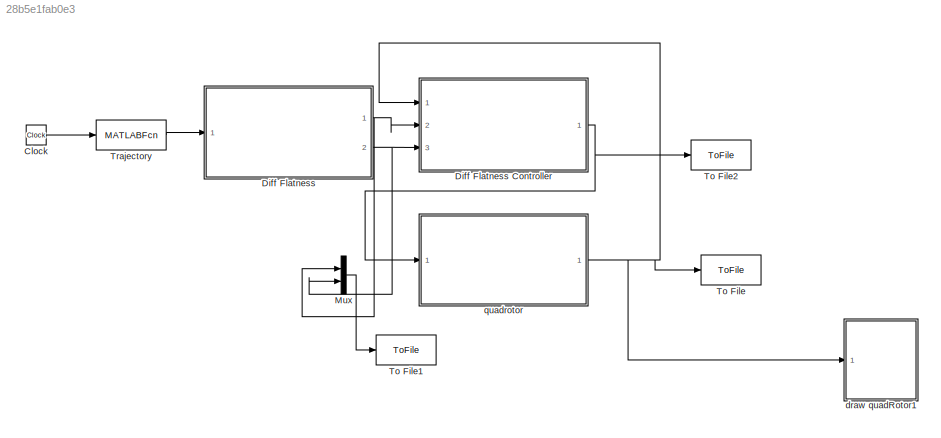
MODEL slx_28b5e1fab0e3
KIND model
BLOCK [Clock] Clock
  Decimation = 100
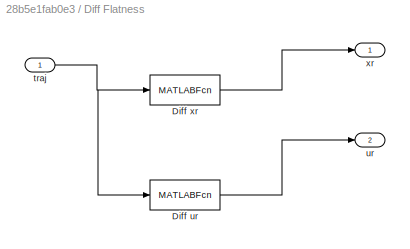
BLOCK [SubSystem] Diff Flatness
  FunctionWithSeparateData = off
  MaskHideContents = off
  MinAlgLoopOccurrences = off
  Opaque = off
  Ports = [1, 2]
  PropExecContextOutsideSubsystem = off
  RTWSystemCode = Auto
  RequestExecContextInheritance = off
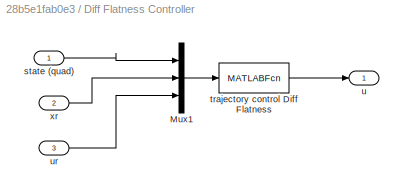
BLOCK [SubSystem] Diff Flatness Controller
  FunctionWithSeparateData = off
  MaskHideContents = off
  MinAlgLoopOccurrences = off
  Opaque = off
  Ports = [3, 1]
  PropExecContextOutsideSubsystem = off
  RTWSystemCode = Auto
  RequestExecContextInheritance = off
BLOCK [Mux] Diff Flatness Controller/Mux1
  DisplayOption = bar
  Inputs = 3
  Ports = [3, 1]
BLOCK [Inport] Diff Flatness Controller/state (quad)
  IconDisplay = Port number
BLOCK [MATLABFcn] Diff Flatness Controller/trajectory control Diff Flatness
  MATLABFcn = TrajControlI_diffFlatness(u,P)
  OutputDimensions = 4
  Ports = [1, 1]
BLOCK [Outport] Diff Flatness Controller/u
  IconDisplay = Port number
BLOCK [Inport] Diff Flatness Controller/ur
  IconDisplay = Port number
  Port = 3
BLOCK [Inport] Diff Flatness Controller/xr 
  IconDisplay = Port number
  Port = 2
BLOCK [MATLABFcn] Diff Flatness/Diff ur
  MATLABFcn = diffFlat_ur(u,P)
  OutputDimensions = 4
  Ports = [1, 1]
BLOCK [MATLABFcn] Diff Flatness/Diff xr
  MATLABFcn = diffFlat_xr(u,P)
  OutputDimensions = 7
  Ports = [1, 1]
BLOCK [Inport] Diff Flatness/traj
  IconDisplay = Port number
BLOCK [Outport] Diff Flatness/ur
  IconDisplay = Port number
  Port = 2
BLOCK [Outport] Diff Flatness/xr
  IconDisplay = Port number
BLOCK [Mux] Mux
  DisplayOption = bar
  Inputs = 2
  Ports = [2, 1]
BLOCK [ToFile] To File
  Filename = quad_states.mat
  MatrixName = X
  Ports = [1]
  SaveFormat = Timeseries
BLOCK [ToFile] To File1
  Filename = traj
  MatrixName = Xt
  Ports = [1]
  SaveFormat = Timeseries
BLOCK [ToFile] To File2
  Filename = control_com
  MatrixName = uc
  Ports = [1]
  SaveFormat = Timeseries
BLOCK [MATLABFcn] Trajectory
  MATLABFcn = trajectory(u,P)
  OutputDimensions = 12
  Ports = [1, 1]
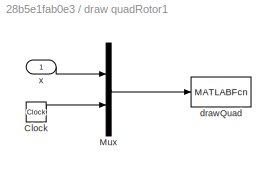
BLOCK [SubSystem] draw quadRotor1
  FunctionWithSeparateData = off
  MaskHideContents = off
  MinAlgLoopOccurrences = off
  Opaque = off
  Ports = [1]
  PropExecContextOutsideSubsystem = off
  RTWSystemCode = Auto
  RequestExecContextInheritance = off
BLOCK [Clock] draw quadRotor1/Clock
BLOCK [Mux] draw quadRotor1/Mux
  DisplayOption = bar
  Inputs = 2
  Ports = [2, 1]
BLOCK [MATLABFcn] draw quadRotor1/drawQuad
  MATLABFcn = drawQuad(u,P)
  OutputDimensions = 0
  Ports = [1]
BLOCK [Inport] draw quadRotor1/x
  IconDisplay = Port number
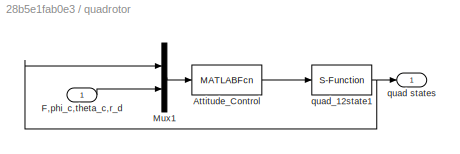
BLOCK [SubSystem] quadrotor
  FunctionWithSeparateData = off
  MaskHideContents = off
  MinAlgLoopOccurrences = off
  Opaque = off
  Ports = [1, 1]
  PropExecContextOutsideSubsystem = off
  RTWSystemCode = Auto
  RequestExecContextInheritance = off
BLOCK [MATLABFcn] quadrotor/Attitude_Control
  MATLABFcn = attitudeControl(u,P)
  OutputDimensions = 4
  Ports = [1, 1]
BLOCK [Inport] quadrotor/F,phi_c,theta_c,r_d
  IconDisplay = Port number
BLOCK [Mux] quadrotor/Mux1
  DisplayOption = bar
  Inputs = 2
  Ports = [2, 1]
BLOCK [Outport] quadrotor/quad states
  IconDisplay = Port number
BLOCK [S-Function] quadrotor/quad_12state1
  EnableBusSupport = off
  FunctionName = quad12stateI
  Parameters = P
  Ports = [1, 1]
LINE Clock:1 -> Trajectory:1
LINE Diff Flatness Controller/Mux1:1 -> Diff Flatness Controller/trajectory control Diff Flatness:1
LINE Diff Flatness Controller/state (quad):1 -> Diff Flatness Controller/Mux1:1
LINE Diff Flatness Controller/trajectory control Diff Flatness:1 -> Diff Flatness Controller/u:1
LINE Diff Flatness Controller/ur:1 -> Diff Flatness Controller/Mux1:3
LINE Diff Flatness Controller/xr :1 -> Diff Flatness Controller/Mux1:2
NET Diff Flatness Controller:1 -> To File2:1, quadrotor:1
LINE Diff Flatness/Diff ur:1 -> Diff Flatness/ur:1
LINE Diff Flatness/Diff xr:1 -> Diff Flatness/xr:1
NET Diff Flatness/traj:1 -> Diff Flatness/Diff ur:1, Diff Flatness/Diff xr:1
NET Diff Flatness:1 -> Diff Flatness Controller:2, Mux:1
NET Diff Flatness:2 -> Diff Flatness Controller:3, Mux:2
LINE Mux:1 -> To File1:1
LINE Trajectory:1 -> Diff Flatness:1
LINE draw quadRotor1/Clock:1 -> draw quadRotor1/Mux:2
LINE draw quadRotor1/Mux:1 -> draw quadRotor1/drawQuad:1
LINE draw quadRotor1/x:1 -> draw quadRotor1/Mux:1
LINE quadrotor/Attitude_Control:1 -> quadrotor/quad_12state1:1
LINE quadrotor/F,phi_c,theta_c,r_d:1 -> quadrotor/Mux1:2
LINE quadrotor/Mux1:1 -> quadrotor/Attitude_Control:1
NET quadrotor/quad_12state1:1 -> quadrotor/Mux1:1, quadrotor/quad states:1
NET quadrotor:1 -> Diff Flatness Controller:1, To File:1, draw quadRotor1:1
note: NET lines group one-source signal fan-out (src -> all destinations, sorted); 1:1 wires keep LINE
